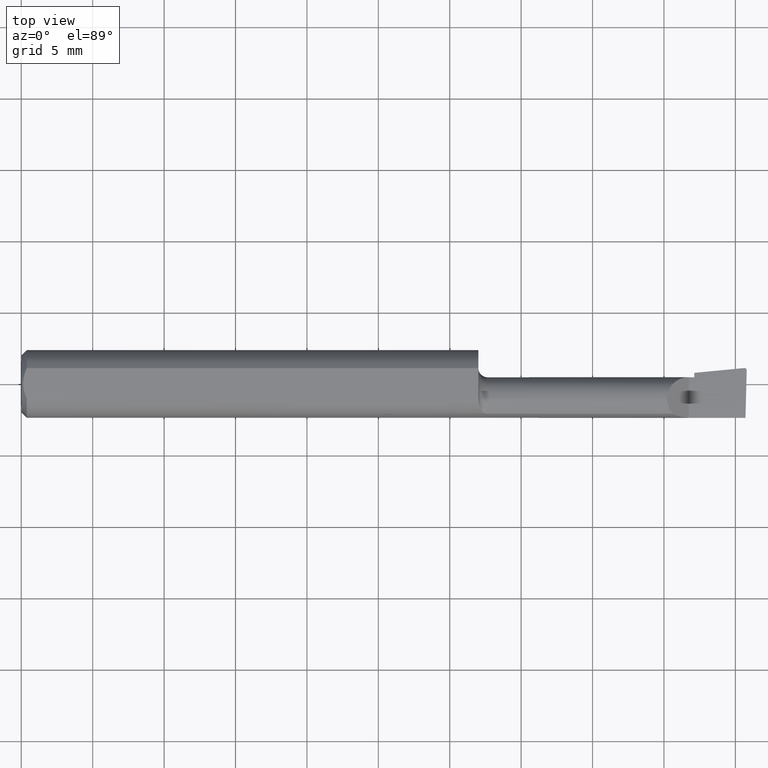
[diagram: clean part render]
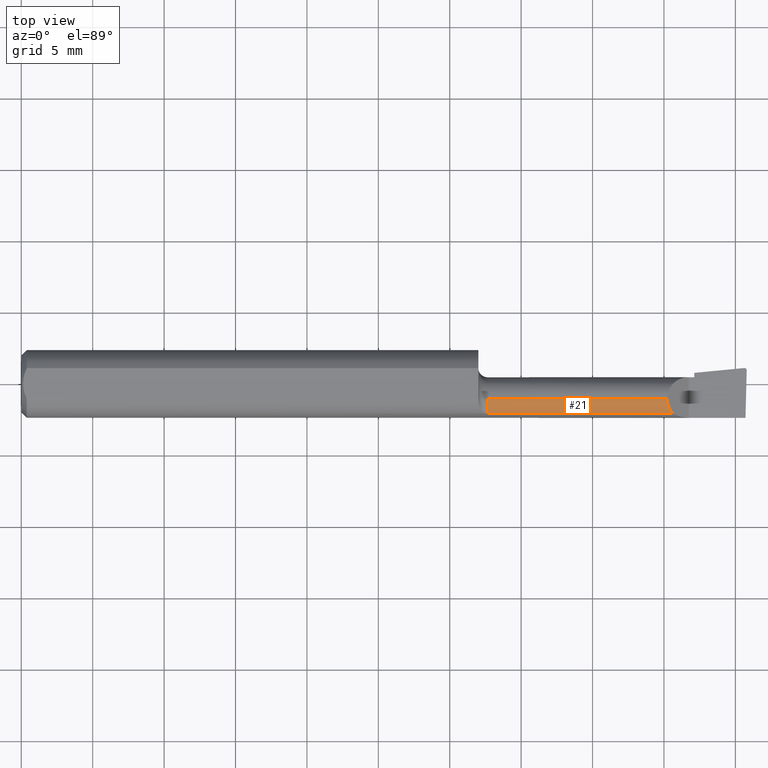
[diagram: same view with one face highlighted and labeled with its STEP entity id]
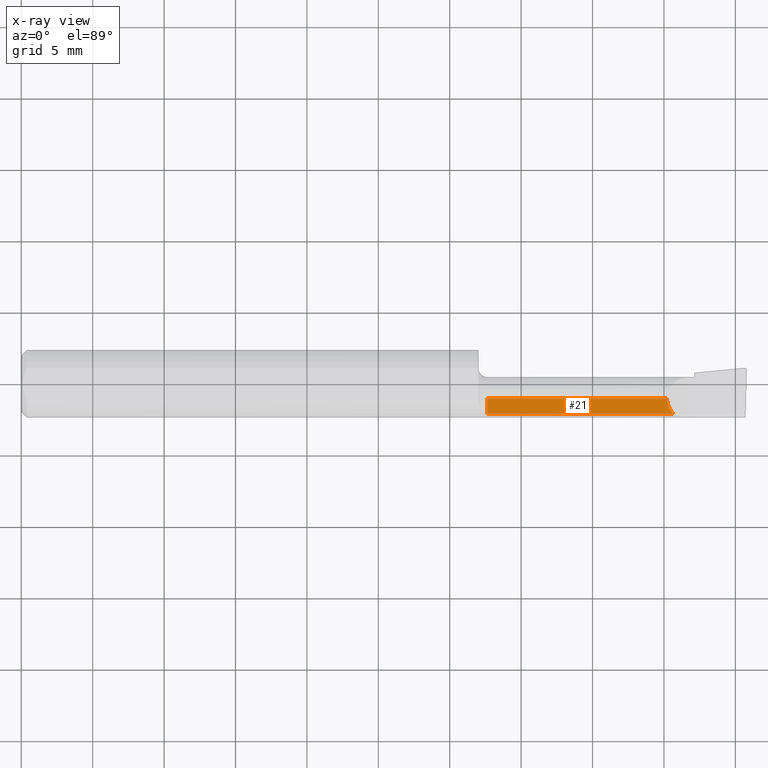
[diagram: x-ray of the same camera — body ghosted, the highlighted face saturated]
A machine part, top view. The second image highlights one B-rep face of the part: STEP entity #21.
The next image is the same camera in x-ray: the body ghosted, the highlighted face saturated — about 0% of this face is hidden behind the body in this view.
In plain terms, the highlighted cylindrical surface (edge-blend (fillet) strip) has radius 1.5215 mm, axis along (-1, -0, -0).
Its self-contained STEP definition (entity closure, byte-faithful):
#18 = DIRECTION ( 'NONE',  ( -1.000000000000000000, -0.0000000000000000000, -0.0000000000000000000 ) ) ;
#21 = ADVANCED_FACE ( 'NONE', ( #142 ), #251, .T. ) ;
#26 = CARTESIAN_POINT ( 'NONE',  ( 1.284999999999999920, -0.04150000000000000216, 0.05989999999999993940 ) ) ;
#118 = ORIENTED_EDGE ( 'NONE', *, *, #137, .T. ) ;
#135 = AXIS2_PLACEMENT_3D ( 'NONE', #529, #18, #638 ) ;
#137 = EDGE_CURVE ( 'NONE', #275, #200, #458, .T. ) ;
#142 = FACE_OUTER_BOUND ( 'NONE', #284, .T. ) ;
#149 = CARTESIAN_POINT ( 'NONE',  ( 1.780099999999999349, -0.04150000000000000216, 0.05989999999999997410 ) ) ;
#162 = LINE ( 'NONE', #201, #408 ) ;
#165 = AXIS2_PLACEMENT_3D ( 'NONE', #316, #315, #303 ) ;
#168 = EDGE_CURVE ( 'NONE', #588, #616, #528, .T. ) ;
#196 = VECTOR ( 'NONE', #293, 39.37007874015748143 ) ;
#200 = VERTEX_POINT ( 'NONE', #654 ) ;
#201 = CARTESIAN_POINT ( 'NONE',  ( 0.0000000000000000000, -0.04150000000000000216, 0.05989999999999997410 ) ) ;
#210 = CARTESIAN_POINT ( 'NONE',  ( 1.785977184218891400, -0.07176861043311237587, 0.05402281578110738197 ) ) ;
#235 = CARTESIAN_POINT ( 'NONE',  ( 1.796877448822106649, -0.08307469879518082634, 0.04312255117789281361 ) ) ;
#242 = EDGE_CURVE ( 'NONE', #588, #275, #317, .T. ) ;
#251 = CYLINDRICAL_SURFACE ( 'NONE', #135, 0.05989999999999997410 ) ;
#258 = CARTESIAN_POINT ( 'NONE',  ( 1.569999999999999840, -0.08307469879518077083, 0.04312255117789288994 ) ) ;
#263 = CARTESIAN_POINT ( 'NONE',  ( 1.780099999999999127, -0.05720488466914008113, 0.05989999999999996022 ) ) ;
#275 = VERTEX_POINT ( 'NONE', #235 ) ;
#277 = EDGE_CURVE ( 'NONE', #200, #616, #162, .T. ) ;
#284 = EDGE_LOOP ( 'NONE', ( #118, #686, #348, #436 ) ) ;
#293 = DIRECTION ( 'NONE',  ( 1.000000000000000000, 0.0000000000000000000, 0.0000000000000000000 ) ) ;
#303 = DIRECTION ( 'NONE',  ( 0.0000000000000000000, 0.0000000000000000000, 1.000000000000000000 ) ) ;
#315 = DIRECTION ( 'NONE',  ( -1.000000000000000000, -0.0000000000000000000, -0.0000000000000000000 ) ) ;
#316 = CARTESIAN_POINT ( 'NONE',  ( 1.284999999999999920, -0.04150000000000000216, 0.0000000000000000000 ) ) ;
#317 = LINE ( 'NONE', #258, #196 ) ;
#348 = ORIENTED_EDGE ( 'NONE', *, *, #168, .F. ) ;
#372 = CARTESIAN_POINT ( 'NONE',  ( 1.284999999999999920, -0.08307469879518036837, 0.04312255117789322995 ) ) ;
#408 = VECTOR ( 'NONE', #509, 39.37007874015748143 ) ;
#436 = ORIENTED_EDGE ( 'NONE', *, *, #242, .T. ) ;
#458 =( BOUNDED_CURVE ( )  B_SPLINE_CURVE ( 3, ( #705, #210, #263, #149 ),
 .UNSPECIFIED., .F., .F. ) 
 B_SPLINE_CURVE_WITH_KNOTS ( ( 4, 4 ),
 ( 5.516060229395656656, 6.283185307179586232 ),
 .UNSPECIFIED. ) 
 CURVE ( )  GEOMETRIC_REPRESENTATION_ITEM ( )  RATIONAL_B_SPLINE_CURVE ( ( 1.000000000000000000, 0.9515582177473687064, 0.9515582177473687064, 1.000000000000000000 ) ) 
 REPRESENTATION_ITEM ( '' )  );
#509 = DIRECTION ( 'NONE',  ( -1.000000000000000000, -0.0000000000000000000, -0.0000000000000000000 ) ) ;
#528 = CIRCLE ( 'NONE', #165, 0.05989999999999993940 ) ;
#529 = CARTESIAN_POINT ( 'NONE',  ( 0.0000000000000000000, -0.04150000000000000216, 0.0000000000000000000 ) ) ;
#588 = VERTEX_POINT ( 'NONE', #372 ) ;
#616 = VERTEX_POINT ( 'NONE', #26 ) ;
#638 = DIRECTION ( 'NONE',  ( 0.0000000000000000000, 0.0000000000000000000, 1.000000000000000000 ) ) ;
#654 = CARTESIAN_POINT ( 'NONE',  ( 1.780099999999999349, -0.04150000000000000216, 0.05989999999999997410 ) ) ;
#686 = ORIENTED_EDGE ( 'NONE', *, *, #277, .T. ) ;
#705 = CARTESIAN_POINT ( 'NONE',  ( 1.796877448822106649, -0.08307469879518082634, 0.04312255117789281361 ) ) ;